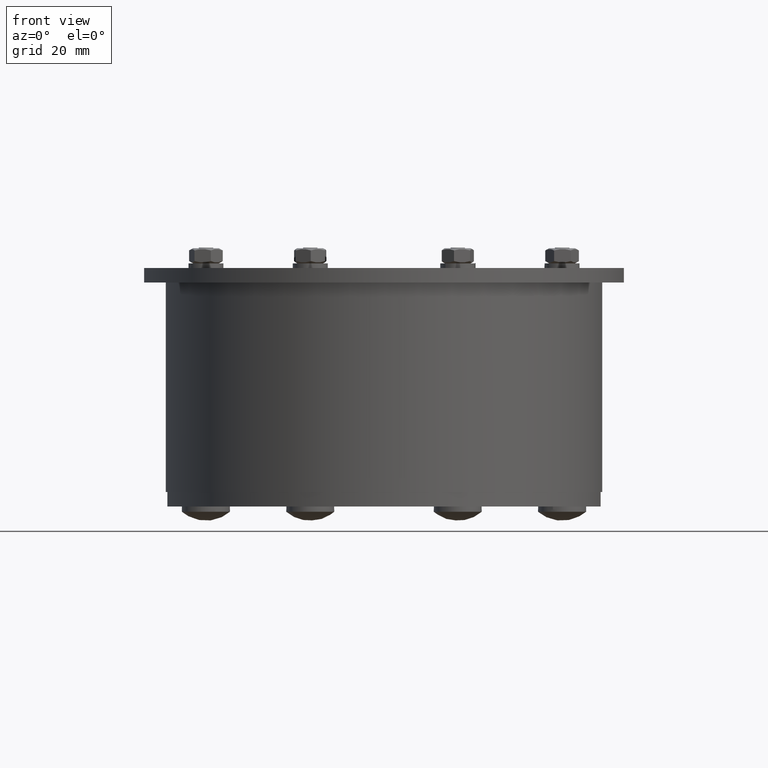
[diagram: clean part render]
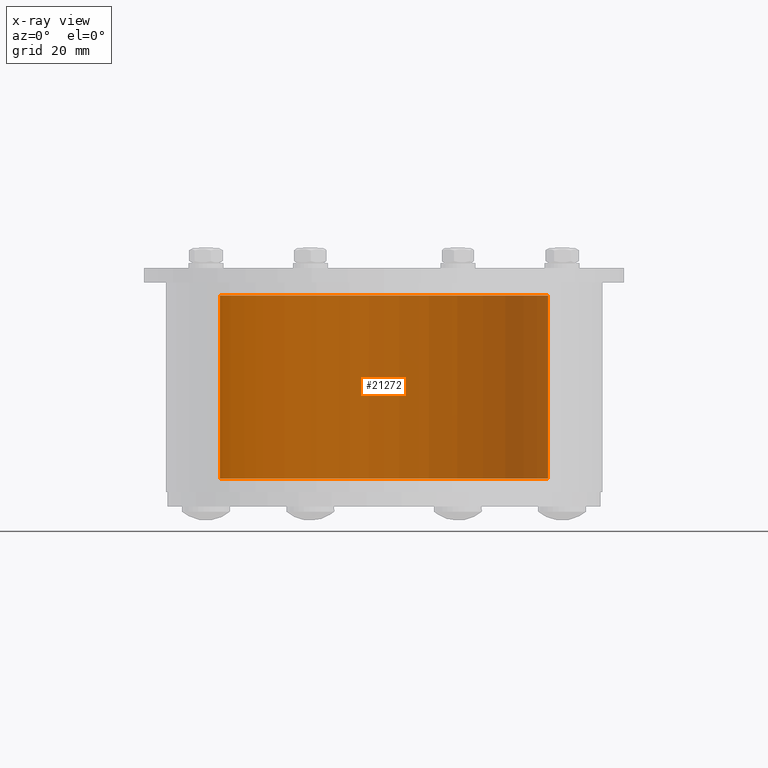
[diagram: x-ray — body ghosted, one internal face saturated and labeled with its STEP entity id]
A machine part, front view, then the same camera in x-ray: the body is ghosted and one INTERNAL B-rep face — a face not visible from any outside direction — is saturated and labeled: STEP entity #21272.
In plain terms, the highlighted cylindrical surface (partial cylindrical patch) has radius 56.4 mm, axis along (0, 0, -1).
Its self-contained STEP definition (entity closure, byte-faithful):
#21231=CARTESIAN_POINT('',(0.0,0.0,0.0));
#21232=DIRECTION('',(0.0,0.0,1.0));
#21233=DIRECTION('',(1.0,0.0,0.0));
#21234=AXIS2_PLACEMENT_3D('',#21231,#21232,#21233);
#21235=CYLINDRICAL_SURFACE('',#21234,56.399999999999999);
#21236=CARTESIAN_POINT('',(56.399999999999999,0.0,0.0));
#21237=VERTEX_POINT('',#21236);
#21238=CARTESIAN_POINT('',(-56.399999999999999,0.0,0.0));
#21239=VERTEX_POINT('',#21238);
#21240=CARTESIAN_POINT('',(0.0,0.0,0.0));
#21241=DIRECTION('',(0.0,0.0,1.0));
#21242=DIRECTION('',(1.0,0.0,0.0));
#21243=AXIS2_PLACEMENT_3D('',#21240,#21241,#21242);
#21244=CIRCLE('',#21243,56.399999999999999);
#21245=EDGE_CURVE('',#21237,#21239,#21244,.T.);
#21246=ORIENTED_EDGE('',*,*,#21245,.T.);
#21247=CARTESIAN_POINT('',(-56.399999999999999,0.0,63.000000000000007));
#21248=VERTEX_POINT('',#21247);
#21249=CARTESIAN_POINT('',(-56.399999999999999,0.0,0.0));
#21250=DIRECTION('',(0.0,0.0,1.0));
#21251=VECTOR('',#21250,63.000000000000007);
#21252=LINE('',#21249,#21251);
#21253=EDGE_CURVE('',#21239,#21248,#21252,.T.);
#21254=ORIENTED_EDGE('',*,*,#21253,.T.);
#21255=CARTESIAN_POINT('',(56.399999999999999,0.0,63.000000000000007));
#21256=VERTEX_POINT('',#21255);
#21257=CARTESIAN_POINT('',(0.0,0.0,63.000000000000007));
#21258=DIRECTION('',(0.0,0.0,1.0));
#21259=DIRECTION('',(1.0,0.0,0.0));
#21260=AXIS2_PLACEMENT_3D('',#21257,#21258,#21259);
#21261=CIRCLE('',#21260,56.399999999999999);
#21262=EDGE_CURVE('',#21256,#21248,#21261,.T.);
#21263=ORIENTED_EDGE('',*,*,#21262,.F.);
#21264=CARTESIAN_POINT('',(56.399999999999999,0.0,0.0));
#21265=DIRECTION('',(0.0,0.0,1.0));
#21266=VECTOR('',#21265,63.000000000000007);
#21267=LINE('',#21264,#21266);
#21268=EDGE_CURVE('',#21237,#21256,#21267,.T.);
#21269=ORIENTED_EDGE('',*,*,#21268,.F.);
#21270=EDGE_LOOP('',(#21246,#21254,#21263,#21269));
#21271=FACE_OUTER_BOUND('',#21270,.T.);
#21272=ADVANCED_FACE('',(#21271),#21235,.T.);